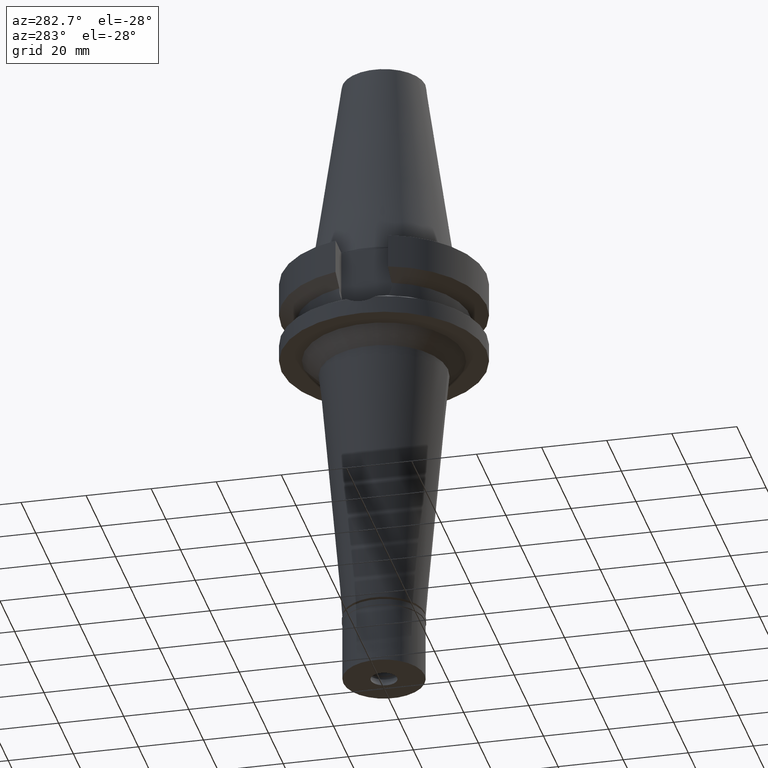
[diagram: clean part render]
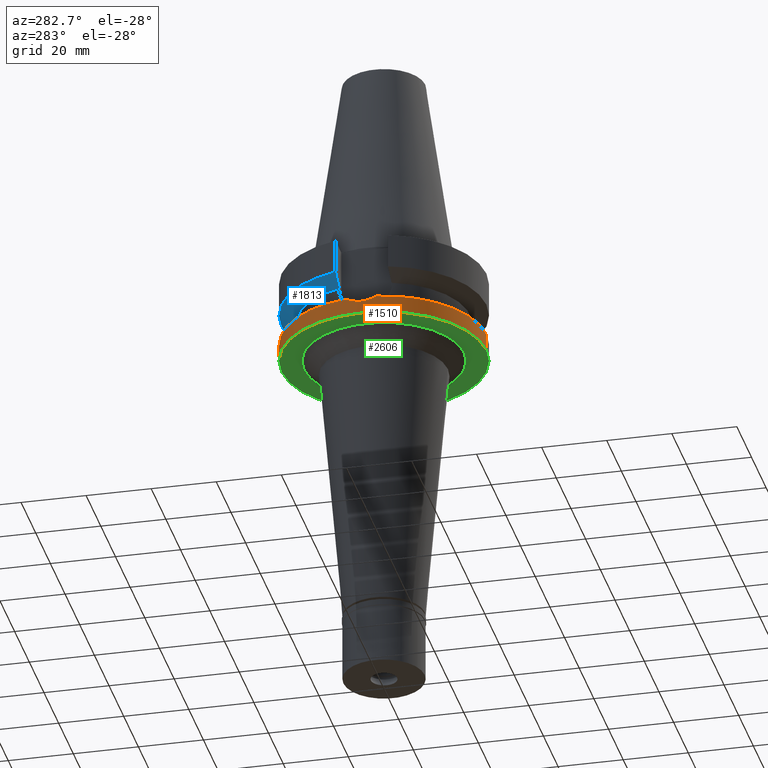
[diagram: same view with three faces highlighted in distinct colors, each labeled with its STEP entity id]
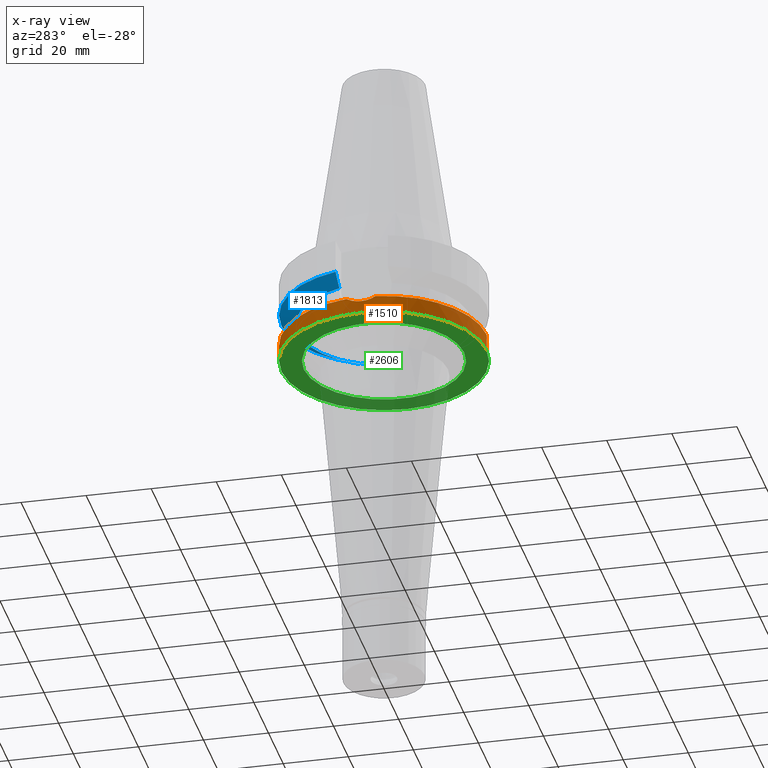
[diagram: x-ray of the same camera — body ghosted, the three highlighted faces saturated]
A machine part, auxiliary view with three faces highlighted in distinct colors.
The next image is the same camera in x-ray (body ghosted, the three faces saturated) — at least one of them is partly hidden behind the body in this view.
Their STEP definitions:

[orange] entity #1510 — the highlighted cylindrical surface (partial cylindrical patch) has radius 31.5 mm, axis along (0, 0, -1).
#52 = CARTESIAN_POINT ( 'NONE',  ( -31.40766011978483974, 2.409778804354832271, -22.63088283290915115 ) ) ;
#64 = CARTESIAN_POINT ( 'NONE',  ( 0.0000000000000000000, 2.144479009986999603E-14, 75.10999999999999943 ) ) ;
#136 = VERTEX_POINT ( 'NONE', #141 ) ;
#141 = CARTESIAN_POINT ( 'NONE',  ( 0.0000000000000000000, -31.50000000000000000, -21.63449434733000132 ) ) ;
#183 = ORIENTED_EDGE ( 'NONE', *, *, #1565, .F. ) ;
#233 = ORIENTED_EDGE ( 'NONE', *, *, #2174, .T. ) ;
#239 = CARTESIAN_POINT ( 'NONE',  ( -31.28476021083076475, -3.750387644367529916, -22.12780550490815656 ) ) ;
#251 = FACE_OUTER_BOUND ( 'NONE', #2453, .T. ) ;
#273 = VERTEX_POINT ( 'NONE', #2850 ) ;
#294 = CARTESIAN_POINT ( 'NONE',  ( -31.44515274080385936, -1.858361164317119396, -22.78319744710115557 ) ) ;
#354 = DIRECTION ( 'NONE',  ( 0.0000000000000000000, -1.105773104655000034E-13, -1.000000000000000000 ) ) ;
#494 = CARTESIAN_POINT ( 'NONE',  ( -31.23235846142550187, 4.114632629751536541, -21.88338401306991088 ) ) ;
#520 = DIRECTION ( 'NONE',  ( 0.0000000000000000000, -1.000000000000000000, 0.0000000000000000000 ) ) ;
#541 = CARTESIAN_POINT ( 'NONE',  ( -31.50022151539519299, 0.7527042670265144952, -23.00128393327102927 ) ) ;
#630 = AXIS2_PLACEMENT_3D ( 'NONE', #2931, #950, #1481 ) ;
#719 = CARTESIAN_POINT ( 'NONE',  ( -31.42485542482014438, -2.174698396615320828, -22.70097738655559283 ) ) ;
#782 = CARTESIAN_POINT ( 'NONE',  ( -31.17899877608999759, 4.485536235554000051, -21.63449434733000132 ) ) ;
#862 = CARTESIAN_POINT ( 'NONE',  ( 0.0000000000000000000, -31.50000000000000000, -27.00000000000000000 ) ) ;
#885 = CIRCLE ( 'NONE', #1749, 31.50000000000000000 ) ;
#903 = VERTEX_POINT ( 'NONE', #2490 ) ;
#950 = DIRECTION ( 'NONE',  ( 0.0000000000000000000, 0.0000000000000000000, -1.000000000000000000 ) ) ;
#971 = CARTESIAN_POINT ( 'NONE',  ( -31.17899877608999759, -4.485536235554000051, -21.63449434733000132 ) ) ;
#1021 = CARTESIAN_POINT ( 'NONE',  ( -31.41089461465026389, 2.367286366836201417, -22.64408540608874176 ) ) ;
#1038 = CARTESIAN_POINT ( 'NONE',  ( -31.46145281022021933, -1.565794984135508994, -22.84878091333806083 ) ) ;
#1089 = B_SPLINE_CURVE_WITH_KNOTS ( 'NONE', 3,
 ( #782, #494, #1718, #1462, #2430, #1472, #1262, #2227, #52, #1021, #1225, #1751, #541, #2173, #2478, #1447, #1038, #294, #1272, #719, #2906, #1679, #2654, #2417, #239, #971 ),
 .UNSPECIFIED., .F., .F.,
 ( 4, 2, 2, 1, 1, 2, 2, 2, 2, 2, 1, 1, 2, 2, 4 ),
 ( 0.0000000000000000000, 0.1250000000000024980, 0.1875000000000038025, 0.2187500000000042744, 0.2343750000000045519, 0.2421875000000045797, 0.2500000000000046074, 0.4999999999999996669, 0.6249999999999971134, 0.6874999999999960032, 0.7187499999999954481, 0.7343749999999951150, 0.7421874999999952260, 0.7499999999999952260, 1.000000000000000000 ),
 .UNSPECIFIED. ) ;
#1092 = VERTEX_POINT ( 'NONE', #1931 ) ;
#1223 = CARTESIAN_POINT ( 'NONE',  ( 0.0000000000000000000, 31.50000000000000000, -21.63449434733000132 ) ) ;
#1225 = CARTESIAN_POINT ( 'NONE',  ( -31.41231540667119404, 2.348389577236963621, -22.64988387338766529 ) ) ;
#1262 = CARTESIAN_POINT ( 'NONE',  ( -31.39062877900730797, 2.624069381190340611, -22.56125769884516785 ) ) ;
#1269 = CARTESIAN_POINT ( 'NONE',  ( -31.17899877608999759, -4.485536235554000051, -21.63449434733000132 ) ) ;
#1272 = CARTESIAN_POINT ( 'NONE',  ( -31.43632894249158483, -2.004540428414186337, -22.74756759129114414 ) ) ;
#1349 = DIRECTION ( 'NONE',  ( 0.0000000000000000000, 0.0000000000000000000, -1.000000000000000000 ) ) ;
#1385 = ORIENTED_EDGE ( 'NONE', *, *, #2009, .T. ) ;
#1429 = ORIENTED_EDGE ( 'NONE', *, *, #2132, .F. ) ;
#1447 = CARTESIAN_POINT ( 'NONE',  ( -31.47052282022021785, -1.370476395672973968, -22.88493220603877987 ) ) ;
#1462 = CARTESIAN_POINT ( 'NONE',  ( -31.33738737653244399, 3.198360222368641370, -22.34005842065516845 ) ) ;
#1472 = CARTESIAN_POINT ( 'NONE',  ( -31.37926297224898775, 2.754961450873857132, -22.51449235646812497 ) ) ;
#1481 = DIRECTION ( 'NONE',  ( -0.9898094849552905306, 0.1423979757318985240, 0.0000000000000000000 ) ) ;
#1510 = ADVANCED_FACE ( 'NONE', ( #251 ), #2210, .T. ) ;
#1530 = LINE ( 'NONE', #2973, #2004 ) ;
#1533 = AXIS2_PLACEMENT_3D ( 'NONE', #64, #2925, #520 ) ;
#1546 = ORIENTED_EDGE ( 'NONE', *, *, #2094, .T. ) ;
#1565 = EDGE_CURVE ( 'NONE', #273, #2041, #1089, .T. ) ;
#1592 = CIRCLE ( 'NONE', #2560, 31.50000000000000000 ) ;
#1679 = CARTESIAN_POINT ( 'NONE',  ( -31.41618280583526612, -2.296039564199546579, -22.66565563143787898 ) ) ;
#1716 = LINE ( 'NONE', #1223, #3071 ) ;
#1718 = CARTESIAN_POINT ( 'NONE',  ( -31.27862557220305462, 3.742722043627843220, -22.08823633645227957 ) ) ;
#1749 = AXIS2_PLACEMENT_3D ( 'NONE', #2551, #1349, #2320 ) ;
#1751 = CARTESIAN_POINT ( 'NONE',  ( -31.47163624094139678, 1.545813037668982926, -22.89189641497796757 ) ) ;
#1784 = DIRECTION ( 'NONE',  ( 0.0000000000000000000, 0.0000000000000000000, 1.000000000000000000 ) ) ;
#1931 = CARTESIAN_POINT ( 'NONE',  ( 0.0000000000000000000, 31.50000000000000000, -21.63449434733000132 ) ) ;
#1959 = CIRCLE ( 'NONE', #630, 31.50000000000001421 ) ;
#2004 = VECTOR ( 'NONE', #354, 1000.000000000000000 ) ;
#2009 = EDGE_CURVE ( 'NONE', #1092, #903, #1716, .T. ) ;
#2041 = VERTEX_POINT ( 'NONE', #1269 ) ;
#2094 = EDGE_CURVE ( 'NONE', #903, #2204, #1592, .T. ) ;
#2132 = EDGE_CURVE ( 'NONE', #136, #2204, #1530, .T. ) ;
#2173 = CARTESIAN_POINT ( 'NONE',  ( -31.49970254372214029, -0.3967646414649197983, -22.99934077991609271 ) ) ;
#2174 = EDGE_CURVE ( 'NONE', #136, #2041, #885, .T. ) ;
#2184 = DIRECTION ( 'NONE',  ( 0.0000000000000000000, 1.099151708819000049E-13, -1.000000000000000000 ) ) ;
#2204 = VERTEX_POINT ( 'NONE', #862 ) ;
#2210 = CYLINDRICAL_SURFACE ( 'NONE', #1533, 31.50000000000000000 ) ;
#2227 = CARTESIAN_POINT ( 'NONE',  ( -31.40272526137857767, 2.473697298115463905, -22.61073334995159101 ) ) ;
#2320 = DIRECTION ( 'NONE',  ( 0.0000000000000000000, -1.000000000000000000, 0.0000000000000000000 ) ) ;
#2417 = CARTESIAN_POINT ( 'NONE',  ( -31.36264905563698591, -3.014358806208660368, -22.44718208696051320 ) ) ;
#2430 = CARTESIAN_POINT ( 'NONE',  ( -31.35520150100276027, 3.019105664686642321, -22.41477928762258642 ) ) ;
#2453 = EDGE_LOOP ( 'NONE', ( #3137, #1385, #1546, #1429, #233, #183 ) ) ;
#2478 = CARTESIAN_POINT ( 'NONE',  ( -31.49234274138752099, -0.7854672021353261702, -22.97128168913690160 ) ) ;
#2490 = CARTESIAN_POINT ( 'NONE',  ( 0.0000000000000000000, 31.50000000000000000, -27.00000000000000000 ) ) ;
#2535 = CARTESIAN_POINT ( 'NONE',  ( 0.0000000000000000000, 2.144479009986999603E-14, -27.00000000000000000 ) ) ;
#2551 = CARTESIAN_POINT ( 'NONE',  ( 0.0000000000000000000, 0.0000000000000000000, -21.63449434733000132 ) ) ;
#2560 = AXIS2_PLACEMENT_3D ( 'NONE', #2535, #1784, #2788 ) ;
#2654 = CARTESIAN_POINT ( 'NONE',  ( -31.41422831847335573, -2.322627319832506032, -22.65768333609983287 ) ) ;
#2701 = EDGE_CURVE ( 'NONE', #273, #1092, #1959, .T. ) ;
#2788 = DIRECTION ( 'NONE',  ( 0.0000000000000000000, 1.000000000000000000, 0.0000000000000000000 ) ) ;
#2850 = CARTESIAN_POINT ( 'NONE',  ( -31.17899877608999759, 4.485536235554000051, -21.63449434733000132 ) ) ;
#2906 = CARTESIAN_POINT ( 'NONE',  ( -31.41968554160942517, -2.247518550622002564, -22.67992883977067820 ) ) ;
#2925 = DIRECTION ( 'NONE',  ( 0.0000000000000000000, 0.0000000000000000000, -1.000000000000000000 ) ) ;
#2931 = CARTESIAN_POINT ( 'NONE',  ( 0.0000000000000000000, 0.0000000000000000000, -21.63449434733000132 ) ) ;
#2973 = CARTESIAN_POINT ( 'NONE',  ( 0.0000000000000000000, -31.50000000000000000, -21.63449434733000132 ) ) ;
#3071 = VECTOR ( 'NONE', #2184, 1000.000000000000000 ) ;
#3137 = ORIENTED_EDGE ( 'NONE', *, *, #2701, .T. ) ;

[blue] entity #1813 — the highlighted conical surface has half-angle 60 deg.
#42 = VERTEX_POINT ( 'NONE', #2699 ) ;
#57 = CARTESIAN_POINT ( 'NONE',  ( 30.45402291369999759, 8.049999277772998951, -11.56551215760999973 ) ) ;
#115 = AXIS2_PLACEMENT_3D ( 'NONE', #1649, #2126, #657 ) ;
#184 = CARTESIAN_POINT ( 'NONE',  ( -30.45402162749999775, 8.050004143578000537, -11.56546832907999978 ) ) ;
#300 = CARTESIAN_POINT ( 'NONE',  ( 25.24772413106000002, 8.049995416272000881, -14.45229202428000015 ) ) ;
#516 = CIRCLE ( 'NONE', #1332, 26.50000000000000711 ) ;
#657 = DIRECTION ( 'NONE',  ( 0.0000000000000000000, 1.000000000000000000, 0.0000000000000000000 ) ) ;
#742 = VERTEX_POINT ( 'NONE', #3028 ) ;
#770 = EDGE_CURVE ( 'NONE', #42, #1086, #516, .T. ) ;
#894 = DIRECTION ( 'NONE',  ( 0.0000000000000000000, 1.000000000000000000, 0.0000000000000000000 ) ) ;
#939 = FACE_OUTER_BOUND ( 'NONE', #2945, .T. ) ;
#1030 = B_SPLINE_CURVE_WITH_KNOTS ( 'NONE', 3,
 ( #57, #1513, #2484, #300 ),
 .UNSPECIFIED., .F., .F.,
 ( 4, 4 ),
 ( 0.0000000000000000000, 1.000000000000000000 ),
 .UNSPECIFIED. ) ;
#1086 = VERTEX_POINT ( 'NONE', #1706 ) ;
#1153 = CARTESIAN_POINT ( 'NONE',  ( 0.0000000000000000000, 1.065333950388000029E-14, -13.00888132564000088 ) ) ;
#1302 = EDGE_CURVE ( 'NONE', #742, #1325, #2857, .T. ) ;
#1306 = DIRECTION ( 'NONE',  ( 0.0000000000000000000, 0.0000000000000000000, -1.000000000000000000 ) ) ;
#1325 = VERTEX_POINT ( 'NONE', #1606 ) ;
#1332 = AXIS2_PLACEMENT_3D ( 'NONE', #2011, #1306, #1793 ) ;
#1513 = CARTESIAN_POINT ( 'NONE',  ( 28.57292329945290277, 8.049998556486698931, -12.61549605034255706 ) ) ;
#1606 = CARTESIAN_POINT ( 'NONE',  ( -30.45402162749999775, 8.050004143578000537, -11.56546832907999978 ) ) ;
#1646 = ORIENTED_EDGE ( 'NONE', *, *, #1765, .T. ) ;
#1649 = CARTESIAN_POINT ( 'NONE',  ( 0.0000000000000000000, 1.065333950388000029E-14, -11.56550565266999975 ) ) ;
#1706 = CARTESIAN_POINT ( 'NONE',  ( 25.24772413106000002, 8.049995416272000881, -14.45229202428000015 ) ) ;
#1765 = EDGE_CURVE ( 'NONE', #42, #1325, #1996, .T. ) ;
#1792 = AXIS2_PLACEMENT_3D ( 'NONE', #1153, #2138, #894 ) ;
#1793 = DIRECTION ( 'NONE',  ( -0.9527442516822307583, 0.3037735849057093818, 0.0000000000000000000 ) ) ;
#1813 = ADVANCED_FACE ( 'NONE', ( #939 ), #2150, .T. ) ;
#1862 = ORIENTED_EDGE ( 'NONE', *, *, #2907, .T. ) ;
#1996 = B_SPLINE_CURVE_WITH_KNOTS ( 'NONE', 3,
 ( #2977, #2875, #2811, #184 ),
 .UNSPECIFIED., .F., .F.,
 ( 4, 4 ),
 ( 0.0000000000000000000, 1.000000000000000000 ),
 .UNSPECIFIED. ) ;
#2011 = CARTESIAN_POINT ( 'NONE',  ( 0.0000000000000000000, 1.065333950388000029E-14, -14.45225699861000024 ) ) ;
#2126 = DIRECTION ( 'NONE',  ( 0.0000000000000000000, 0.0000000000000000000, 1.000000000000000000 ) ) ;
#2138 = DIRECTION ( 'NONE',  ( 0.0000000000000000000, 0.0000000000000000000, 1.000000000000000000 ) ) ;
#2150 = CONICAL_SURFACE ( 'NONE', #1792, 29.00000000000000000, 1.047197551196400456 ) ;
#2484 = CARTESIAN_POINT ( 'NONE',  ( 26.83754616947988936, 8.049990822394851975, -13.57774887571949840 ) ) ;
#2544 = ORIENTED_EDGE ( 'NONE', *, *, #1302, .F. ) ;
#2699 = CARTESIAN_POINT ( 'NONE',  ( -25.24772216379000156, 8.050001586346999360, -14.45224487752000009 ) ) ;
#2811 = CARTESIAN_POINT ( 'NONE',  ( -28.57295871281005262, 8.050008282121346781, -12.61547480403621080 ) ) ;
#2857 = CIRCLE ( 'NONE', #115, 31.50000000000000000 ) ;
#2875 = CARTESIAN_POINT ( 'NONE',  ( -26.83758148212437433, 8.050003176118456949, -13.57772735289292143 ) ) ;
#2907 = EDGE_CURVE ( 'NONE', #742, #1086, #1030, .T. ) ;
#2922 = ORIENTED_EDGE ( 'NONE', *, *, #770, .F. ) ;
#2945 = EDGE_LOOP ( 'NONE', ( #2544, #1862, #2922, #1646 ) ) ;
#2977 = CARTESIAN_POINT ( 'NONE',  ( -25.24772216379000156, 8.050001586346999360, -14.45224487752000009 ) ) ;
#3028 = CARTESIAN_POINT ( 'NONE',  ( 30.45402291369999759, 8.049999277772998951, -11.56551215760999973 ) ) ;

[green] entity #2606 — the highlighted planar face has unit normal (0, 0, -1).
#159 = CARTESIAN_POINT ( 'NONE',  ( 0.0000000000000000000, 0.0000000000000000000, -27.00000000000000000 ) ) ;
#173 = AXIS2_PLACEMENT_3D ( 'NONE', #2423, #1219, #1969 ) ;
#275 = CARTESIAN_POINT ( 'NONE',  ( 0.0000000000000000000, 2.144479009986999603E-14, -27.00000000000000000 ) ) ;
#346 = DIRECTION ( 'NONE',  ( 0.0000000000000000000, -1.000000000000000000, 0.0000000000000000000 ) ) ;
#395 = DIRECTION ( 'NONE',  ( 0.0000000000000000000, 1.000000000000000000, 0.0000000000000000000 ) ) ;
#466 = FACE_OUTER_BOUND ( 'NONE', #2533, .T. ) ;
#501 = ORIENTED_EDGE ( 'NONE', *, *, #1378, .F. ) ;
#712 = DIRECTION ( 'NONE',  ( 0.0000000000000000000, 0.0000000000000000000, -1.000000000000000000 ) ) ;
#833 = VERTEX_POINT ( 'NONE', #2294 ) ;
#838 = CARTESIAN_POINT ( 'NONE',  ( 0.0000000000000000000, -24.64782381007000112, -27.00000000000000000 ) ) ;
#862 = CARTESIAN_POINT ( 'NONE',  ( 0.0000000000000000000, -31.50000000000000000, -27.00000000000000000 ) ) ;
#903 = VERTEX_POINT ( 'NONE', #2490 ) ;
#964 = FACE_BOUND ( 'NONE', #2137, .T. ) ;
#1144 = CIRCLE ( 'NONE', #2308, 31.50000000000000000 ) ;
#1189 = AXIS2_PLACEMENT_3D ( 'NONE', #159, #3102, #395 ) ;
#1219 = DIRECTION ( 'NONE',  ( 0.0000000000000000000, 0.0000000000000000000, -1.000000000000000000 ) ) ;
#1252 = DIRECTION ( 'NONE',  ( 0.0000000000000000000, 0.0000000000000000000, 1.000000000000000000 ) ) ;
#1378 = EDGE_CURVE ( 'NONE', #833, #1981, #2556, .T. ) ;
#1420 = DIRECTION ( 'NONE',  ( 0.0000000000000000000, -1.000000000000000000, 0.0000000000000000000 ) ) ;
#1423 = ORIENTED_EDGE ( 'NONE', *, *, #2229, .F. ) ;
#1485 = ORIENTED_EDGE ( 'NONE', *, *, #2094, .F. ) ;
#1497 = CIRCLE ( 'NONE', #173, 24.64782381007000112 ) ;
#1592 = CIRCLE ( 'NONE', #2560, 31.50000000000000000 ) ;
#1784 = DIRECTION ( 'NONE',  ( 0.0000000000000000000, 0.0000000000000000000, 1.000000000000000000 ) ) ;
#1915 = ORIENTED_EDGE ( 'NONE', *, *, #2665, .F. ) ;
#1969 = DIRECTION ( 'NONE',  ( 0.0000000000000000000, -1.000000000000000000, 0.0000000000000000000 ) ) ;
#1981 = VERTEX_POINT ( 'NONE', #838 ) ;
#2094 = EDGE_CURVE ( 'NONE', #903, #2204, #1592, .T. ) ;
#2137 = EDGE_LOOP ( 'NONE', ( #501, #1915 ) ) ;
#2180 = PLANE ( 'NONE',  #3076 ) ;
#2204 = VERTEX_POINT ( 'NONE', #862 ) ;
#2229 = EDGE_CURVE ( 'NONE', #2204, #903, #1144, .T. ) ;
#2294 = CARTESIAN_POINT ( 'NONE',  ( 0.0000000000000000000, 24.64782381007000112, -27.00000000000000000 ) ) ;
#2308 = AXIS2_PLACEMENT_3D ( 'NONE', #275, #1252, #346 ) ;
#2423 = CARTESIAN_POINT ( 'NONE',  ( 0.0000000000000000000, 0.0000000000000000000, -27.00000000000000000 ) ) ;
#2490 = CARTESIAN_POINT ( 'NONE',  ( 0.0000000000000000000, 31.50000000000000000, -27.00000000000000000 ) ) ;
#2533 = EDGE_LOOP ( 'NONE', ( #1485, #1423 ) ) ;
#2535 = CARTESIAN_POINT ( 'NONE',  ( 0.0000000000000000000, 2.144479009986999603E-14, -27.00000000000000000 ) ) ;
#2556 = CIRCLE ( 'NONE', #1189, 24.64782381007000112 ) ;
#2560 = AXIS2_PLACEMENT_3D ( 'NONE', #2535, #1784, #2788 ) ;
#2606 = ADVANCED_FACE ( 'NONE', ( #466, #964 ), #2180, .T. ) ;
#2632 = CARTESIAN_POINT ( 'NONE',  ( 0.0000000000000000000, 0.0000000000000000000, -27.00000000000000000 ) ) ;
#2665 = EDGE_CURVE ( 'NONE', #1981, #833, #1497, .T. ) ;
#2788 = DIRECTION ( 'NONE',  ( 0.0000000000000000000, 1.000000000000000000, 0.0000000000000000000 ) ) ;
#3076 = AXIS2_PLACEMENT_3D ( 'NONE', #2632, #712, #1420 ) ;
#3102 = DIRECTION ( 'NONE',  ( 0.0000000000000000000, 0.0000000000000000000, -1.000000000000000000 ) ) ;